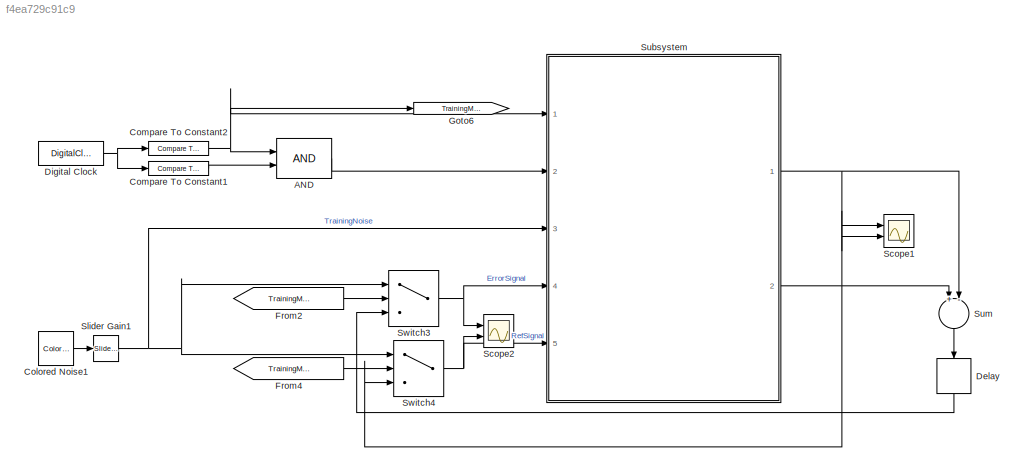
MODEL slx_f4ea729c91c9
KIND model
CONFIG AbsTol = auto
CONFIG EnableMultiTasking = off
CONFIG FixedStep = 0.001
CONFIG MaxStep = auto
CONFIG MinStep = auto
CONFIG RelTol = 1e-3
CONFIG SampleTimeConstraint = Unconstrained
CONFIG SolverName = FixedStepDiscrete
CONFIG StartTime = 0.0
CONFIG StopTime = 20
BLOCK [Logic] AND
  AllPortsSameDT = off
  IconShape = distinctive
  OutDataTypeStr = boolean
  Ports = [2, 1]
BLOCK [Reference] Colored Noise1  REF=dspsrcs4/Colored Noise
  Ports = [0, 1]
  SourceBlock = dspsrcs4/Colored Noise
  SourceProductBaseCode = DS
  SourceType = dsp.simulink.ColoredNoise
BLOCK [Reference] Compare To Constant1  REF=simulink/Logic and Bit
Operations/Compare
To Constant
  Ports = [1, 1]
  SourceBlock = simulink/Logic and Bit\nOperations/Compare\nTo Constant
  SourceProductBaseCode = SL
  SourceType = Compare To Constant
BLOCK [Reference] Compare To Constant2  REF=simulink/Logic and Bit
Operations/Compare
To Constant
  Ports = [1, 1]
  SourceBlock = simulink/Logic and Bit\nOperations/Compare\nTo Constant
  SourceProductBaseCode = SL
  SourceType = Compare To Constant
BLOCK [Delay] Delay
  DelayLength = 1
  InputPortMap = u0
  NameLocation = right
  Ports = [1, 1]
BLOCK [DigitalClock] Digital Clock
  SampleTime = 0.001
BLOCK [From] From2
  GotoTag = TrainingMode
BLOCK [From] From4
  GotoTag = TrainingMode
BLOCK [Goto] Goto6
  GotoTag = TrainingMode
BLOCK [Scope] Scope1
  Floating = off
  NumInputPorts = 2
  Ports = [2]
  ScopeSpecificationString = Simulink.scopes.TimeScopeBlockCfg('CurrentConfiguration', extmgr.ConfigurationSet(extmgr.Configuration('Core','General UI',true),extmgr.Configuration('Core','Source UI',true),extmgr.Configuration('Sources','WiredSimulink',true,'DataLoggingVariableName','ScopeData1'),extmgr.Configuration('Visuals','Time Domain',true,'SerializedDisplays',{struct('MinYLimReal','-0.52093','MaxYLimReal','0.51414','YLab...<+2004ch>
BLOCK [Scope] Scope2
  Floating = off
  NumInputPorts = 2
  Ports = [2]
  ScopeSpecificationString = Simulink.scopes.TimeScopeBlockCfg('CurrentConfiguration', extmgr.ConfigurationSet(extmgr.Configuration('Core','General UI',true),extmgr.Configuration('Core','Source UI',true),extmgr.Configuration('Sources','WiredSimulink',true),extmgr.Configuration('Visuals','Time Domain',true,'SerializedDisplays',{struct('MinYLimReal','-0.47901','MaxYLimReal','0.50948','YLabelReal','','MinYLimMag','0.00000','MaxY...<+1946ch>
BLOCK [Reference] Slider Gain1  REF=simulink/Math
Operations/Slider
Gain
  Ports = [1, 1]
  SourceBlock = simulink/Math\nOperations/Slider\nGain
  SourceProductBaseCode = SL
  SourceType = Slider Gain
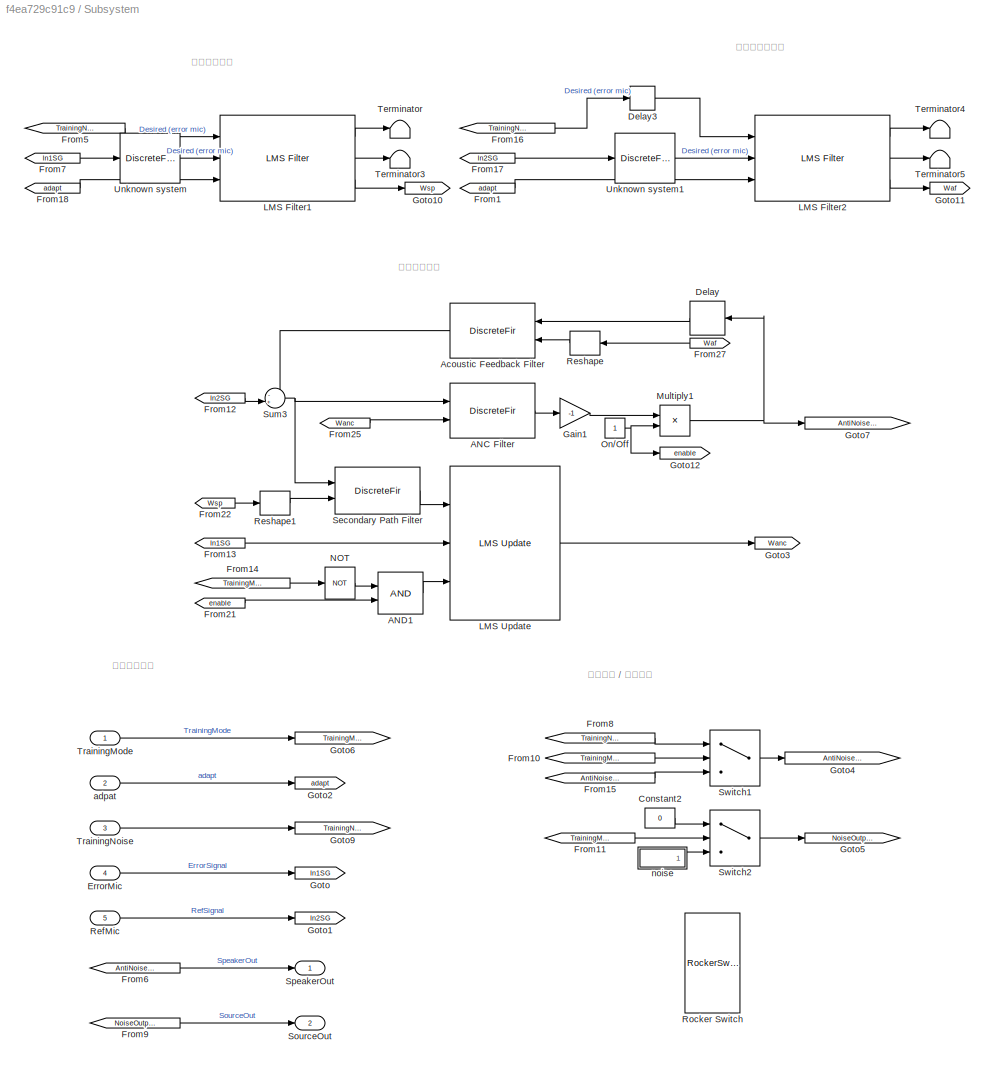
BLOCK [SubSystem] Subsystem
  Ports = [5, 2]
  RequestExecContextInheritance = off
BLOCK [DiscreteFir] Subsystem/ANC Filter
  CoefSource = Input port
  InputPortMap = u0,u1
  OutputPortMap = o0
  Ports = [2, 1]
BLOCK [Logic] Subsystem/AND1
  AllPortsSameDT = off
  IconShape = distinctive
  OutDataTypeStr = boolean
  Ports = [2, 1]
BLOCK [DiscreteFir] Subsystem/Acoustic Feedback Filter
  CoefSource = Input port
  InputPortMap = u0,u1
  OutputPortMap = o0
  Ports = [2, 1]
BLOCK [Constant] Subsystem/Constant2
  Value = 0
BLOCK [Delay] Subsystem/Delay
  DelayLength = 1
  InputPortMap = u0
  Ports = [1, 1]
BLOCK [Delay] Subsystem/Delay3
  DelayLength = 1
  InputPortMap = u0
  Ports = [1, 1]
BLOCK [Inport] Subsystem/ErrorMic
  Port = 4
BLOCK [From] Subsystem/From1
  GotoTag = adapt
BLOCK [From] Subsystem/From10
  GotoTag = TrainingMode
BLOCK [From] Subsystem/From11
  GotoTag = TrainingMode
BLOCK [From] Subsystem/From12
  GotoTag = In2SG
BLOCK [From] Subsystem/From13
  GotoTag = In1SG
BLOCK [From] Subsystem/From14
  GotoTag = TrainingMode
BLOCK [From] Subsystem/From15
  GotoTag = AntiNoiseAdapt
BLOCK [From] Subsystem/From16
  GotoTag = TrainingNoise
BLOCK [From] Subsystem/From17
  GotoTag = In2SG
BLOCK [From] Subsystem/From18
  GotoTag = adapt
BLOCK [From] Subsystem/From21
  GotoTag = enable
BLOCK [From] Subsystem/From22
  GotoTag = Wsp
BLOCK [From] Subsystem/From25
  GotoTag = Wanc
BLOCK [From] Subsystem/From27
  GotoTag = Waf
BLOCK [From] Subsystem/From5
  GotoTag = TrainingNoise
BLOCK [From] Subsystem/From6
  GotoTag = AntiNoiseOutput
BLOCK [From] Subsystem/From7
  GotoTag = In1SG
BLOCK [From] Subsystem/From8
  GotoTag = TrainingNoise
BLOCK [From] Subsystem/From9
  GotoTag = NoiseOutput
BLOCK [Gain] Subsystem/Gain1
  Gain = -1
BLOCK [Goto] Subsystem/Goto
  GotoTag = In1SG
BLOCK [Goto] Subsystem/Goto1
  GotoTag = In2SG
BLOCK [Goto] Subsystem/Goto10
  GotoTag = Wsp
BLOCK [Goto] Subsystem/Goto11
  GotoTag = Waf
BLOCK [Goto] Subsystem/Goto12
  GotoTag = enable
BLOCK [Goto] Subsystem/Goto2
  GotoTag = adapt
BLOCK [Goto] Subsystem/Goto3
  GotoTag = Wanc
BLOCK [Goto] Subsystem/Goto4
  GotoTag = AntiNoiseOutput
BLOCK [Goto] Subsystem/Goto5
  GotoTag = NoiseOutput
BLOCK [Goto] Subsystem/Goto6
  GotoTag = TrainingMode
BLOCK [Goto] Subsystem/Goto7
  GotoTag = AntiNoiseAdapt
BLOCK [Goto] Subsystem/Goto9
  GotoTag = TrainingNoise
BLOCK [Reference] Subsystem/LMS Filter1  REF=dspadpt3/LMS Filter
  Ports = [3, 3]
  SourceBlock = dspadpt3/LMS Filter
  SourceProductBaseCode = DS
  SourceType = LMS Filter
BLOCK [Reference] Subsystem/LMS Filter2  REF=dspadpt3/LMS Filter
  Ports = [3, 3]
  SourceBlock = dspadpt3/LMS Filter
  SourceProductBaseCode = DS
  SourceType = LMS Filter
BLOCK [Reference] Subsystem/LMS Update  REF=dspadpt3/LMS Update
  Ports = [3, 1]
  SourceBlock = dspadpt3/LMS Update
  SourceProductBaseCode = DS
  SourceType = dsp.simulink.LMSUpdate
BLOCK [Product] Subsystem/Multiply1
  Ports = [2, 1]
BLOCK [Logic] Subsystem/NOT
  AllPortsSameDT = off
  IconShape = distinctive
  Operator = NOT
  OutDataTypeStr = boolean
  Ports = [1, 1]
BLOCK [Constant] Subsystem/On//Off
BLOCK [Inport] Subsystem/RefMic
  Port = 5
BLOCK [Reshape] Subsystem/Reshape
  OutputDimensionality = Row vector (2-D)
  Ports = [1, 1]
BLOCK [Reshape] Subsystem/Reshape1
  OutputDimensionality = Row vector (2-D)
  Ports = [1, 1]
BLOCK [RockerSwitchBlock] Subsystem/Rocker Switch
  LabelPosition = Hide
BLOCK [DiscreteFir] Subsystem/Secondary Path Filter
  CoefSource = Input port
  InputPortMap = u0,u1
  OutputPortMap = o0
  Ports = [2, 1]
BLOCK [Outport] Subsystem/SourceOut
  Port = 2
BLOCK [Outport] Subsystem/SpeakerOut
BLOCK [Sum] Subsystem/Sum3
  Inputs = -+|
  Ports = [2, 1]
BLOCK [Switch] Subsystem/Switch1
  Criteria = u2 ~= 0
  InputSameDT = off
  SaturateOnIntegerOverflow = off
  Threshold = 5
BLOCK [Switch] Subsystem/Switch2
  Criteria = u2 ~= 0
  InputSameDT = off
  SaturateOnIntegerOverflow = off
  Threshold = 5
BLOCK [Terminator] Subsystem/Terminator
BLOCK [Terminator] Subsystem/Terminator3
BLOCK [Terminator] Subsystem/Terminator4
BLOCK [Terminator] Subsystem/Terminator5
BLOCK [Inport] Subsystem/TrainingMode
BLOCK [Inport] Subsystem/TrainingNoise
  Port = 3
BLOCK [DiscreteFir] Subsystem/Unknown system
  Coefficients = [0 0 -.5 .5 -.3 .2 -.1 .5 -.5]
  InputPortMap = u0
  InputProcessing = Columns as channels (frame based)
  OutputPortMap = o0
  Ports = [1, 1]
BLOCK [DiscreteFir] Subsystem/Unknown system1
  Coefficients = [0 0 -.5 .5 -.3 .2 -.1 .5 -.5]
  InputPortMap = u0
  InputProcessing = Columns as channels (frame based)
  OutputPortMap = o0
  Ports = [1, 1]
BLOCK [Inport] Subsystem/adpat
  Port = 2
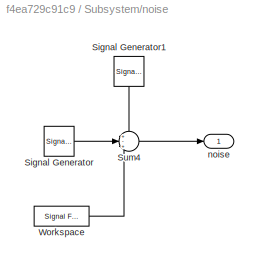
BLOCK [SubSystem] Subsystem/noise
  Ports = [0, 1]
  RequestExecContextInheritance = off
BLOCK [SignalGenerator] Subsystem/noise/Signal Generator
  Amplitude = .2
  Frequency = 150
  Ports = [0, 1]
BLOCK [SignalGenerator] Subsystem/noise/Signal Generator1
  Amplitude = .15
  Frequency = 225
  NameLocation = left
  Ports = [0, 1]
BLOCK [Sum] Subsystem/noise/Sum4
  Inputs = +-+
  Ports = [3, 1]
BLOCK [Reference] Subsystem/noise/Workspace  REF=dspsrcs4/Signal From
Workspace
  Commented = on
  Ports = [0, 1]
  SourceBlock = dspsrcs4/Signal From\nWorkspace
  SourceProductBaseCode = DS
  SourceType = Signal From Workspace
BLOCK [Outport] Subsystem/noise/noise
  VectorParamsAs1DForOutWhenUnconnected = off
BLOCK [Sum] Sum
  Inputs = +-|
  NameLocation = left
  Ports = [2, 1]
BLOCK [Switch] Switch3
  Criteria = u2 ~= 0
  InputSameDT = off
  SaturateOnIntegerOverflow = off
  Threshold = 5
BLOCK [Switch] Switch4
  Criteria = u2 ~= 0
  InputSameDT = off
  SaturateOnIntegerOverflow = off
  Threshold = 5
ANNOTATION Subsystem: 主动噪声控制
ANNOTATION Subsystem: 声反馈路径估计
ANNOTATION Subsystem: 模式选择 / 信号线路
ANNOTATION Subsystem: 次级路径估计
ANNOTATION Subsystem: 系统输入输出
LINE AND:1 -> Subsystem:2
LINE Colored Noise1:1 -> Slider Gain1:1
LINE Compare To Constant1:1 -> AND:2
NET Compare To Constant2:1 -> AND:1, Goto6:1, Subsystem:1
LINE Delay:1 -> Switch3:3
NET Digital Clock:1 -> Compare To Constant1:1, Compare To Constant2:1
LINE From2:1 -> Switch3:2
LINE From4:1 -> Switch4:2
NET Slider Gain1:1 -> Subsystem:3, Switch3:1, Switch4:1
LINE Subsystem/ANC Filter:1 -> Subsystem/Gain1:1
LINE Subsystem/AND1:1 -> Subsystem/LMS Update:3
LINE Subsystem/Acoustic Feedback Filter:1 -> Subsystem/Sum3:1
LINE Subsystem/Constant2:1 -> Subsystem/Switch2:1
LINE Subsystem/Delay3:1 -> Subsystem/LMS Filter2:1
LINE Subsystem/Delay:1 -> Subsystem/Acoustic Feedback Filter:1
LINE Subsystem/ErrorMic:1 -> Subsystem/Goto:1
LINE Subsystem/From10:1 -> Subsystem/Switch1:2
LINE Subsystem/From11:1 -> Subsystem/Switch2:2
LINE Subsystem/From12:1 -> Subsystem/Sum3:2
LINE Subsystem/From13:1 -> Subsystem/LMS Update:2
LINE Subsystem/From14:1 -> Subsystem/NOT:1
LINE Subsystem/From15:1 -> Subsystem/Switch1:3
LINE Subsystem/From16:1 -> Subsystem/Delay3:1
LINE Subsystem/From17:1 -> Subsystem/Unknown system1:1
LINE Subsystem/From18:1 -> Subsystem/LMS Filter1:3
LINE Subsystem/From1:1 -> Subsystem/LMS Filter2:3
LINE Subsystem/From21:1 -> Subsystem/AND1:2
LINE Subsystem/From22:1 -> Subsystem/Reshape1:1
LINE Subsystem/From25:1 -> Subsystem/ANC Filter:2
LINE Subsystem/From27:1 -> Subsystem/Reshape:1
LINE Subsystem/From5:1 -> Subsystem/LMS Filter1:1
LINE Subsystem/From6:1 -> Subsystem/SpeakerOut:1
LINE Subsystem/From7:1 -> Subsystem/Unknown system:1
LINE Subsystem/From8:1 -> Subsystem/Switch1:1
LINE Subsystem/From9:1 -> Subsystem/SourceOut:1
LINE Subsystem/Gain1:1 -> Subsystem/Multiply1:1
LINE Subsystem/LMS Filter1:1 -> Subsystem/Terminator:1
LINE Subsystem/LMS Filter1:2 -> Subsystem/Terminator3:1
LINE Subsystem/LMS Filter1:3 -> Subsystem/Goto10:1
LINE Subsystem/LMS Filter2:1 -> Subsystem/Terminator4:1
LINE Subsystem/LMS Filter2:2 -> Subsystem/Terminator5:1
LINE Subsystem/LMS Filter2:3 -> Subsystem/Goto11:1
LINE Subsystem/LMS Update:1 -> Subsystem/Goto3:1
NET Subsystem/Multiply1:1 -> Subsystem/Delay:1, Subsystem/Goto7:1
LINE Subsystem/NOT:1 -> Subsystem/AND1:1
NET Subsystem/On//Off:1 -> Subsystem/Goto12:1, Subsystem/Multiply1:2
LINE Subsystem/RefMic:1 -> Subsystem/Goto1:1
LINE Subsystem/Reshape1:1 -> Subsystem/Secondary Path Filter:2
LINE Subsystem/Reshape:1 -> Subsystem/Acoustic Feedback Filter:2
LINE Subsystem/Secondary Path Filter:1 -> Subsystem/LMS Update:1
NET Subsystem/Sum3:1 -> Subsystem/ANC Filter:1, Subsystem/Secondary Path Filter:1
LINE Subsystem/Switch1:1 -> Subsystem/Goto4:1
LINE Subsystem/Switch2:1 -> Subsystem/Goto5:1
LINE Subsystem/TrainingMode:1 -> Subsystem/Goto6:1
LINE Subsystem/TrainingNoise:1 -> Subsystem/Goto9:1
LINE Subsystem/Unknown system1:1 -> Subsystem/LMS Filter2:2
LINE Subsystem/Unknown system:1 -> Subsystem/LMS Filter1:2
LINE Subsystem/adpat:1 -> Subsystem/Goto2:1
LINE Subsystem/noise/Signal Generator1:1 -> Subsystem/noise/Sum4:1
LINE Subsystem/noise/Signal Generator:1 -> Subsystem/noise/Sum4:2
LINE Subsystem/noise/Sum4:1 -> Subsystem/noise/noise:1
LINE Subsystem/noise/Workspace:1 -> Subsystem/noise/Sum4:3
LINE Subsystem/noise:1 -> Subsystem/Switch2:3
NET Subsystem:1 -> Scope1:1, Sum:2
NET Subsystem:2 -> Scope1:2, Sum:1, Switch4:3
LINE Sum:1 -> Delay:1
NET Switch3:1 -> Scope2:1, Subsystem:4
NET Switch4:1 -> Scope2:2, Subsystem:5
note: NET lines group one-source signal fan-out (src -> all destinations, sorted); 1:1 wires keep LINE
